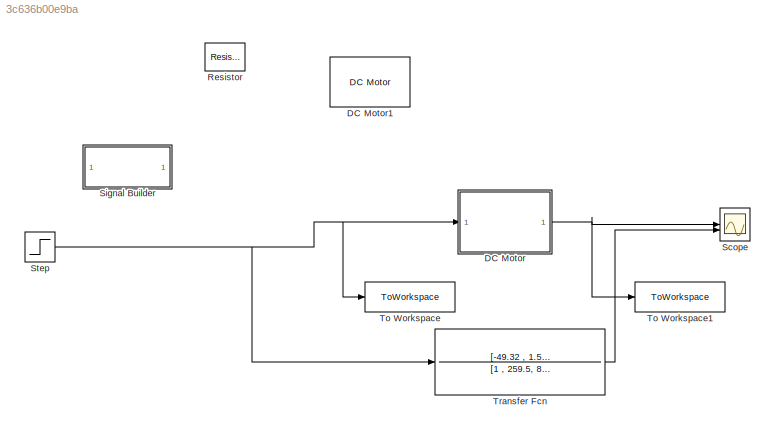
MODEL slx_3c636b00e9ba
KIND model
CONFIG AbsTol = auto
CONFIG EnableMultiTasking = off
CONFIG FixedStep = auto
CONFIG MaxStep = auto
CONFIG MinStep = auto
CONFIG RelTol = 1e-3
CONFIG SampleTimeConstraint = Unconstrained
CONFIG SolverName = VariableStepAuto
CONFIG StartTime = 0.0
CONFIG StopTime = 10.0
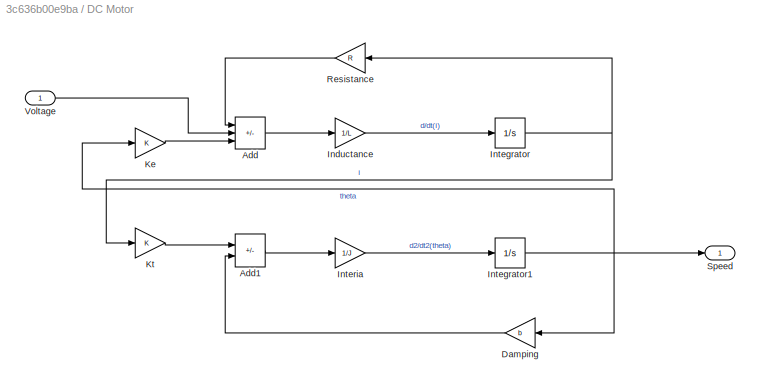
BLOCK [SubSystem] DC Motor
BLOCK [Sum] DC Motor/Add
  IconShape = rectangular
  Inputs = -+-
BLOCK [Sum] DC Motor/Add1
  IconShape = rectangular
  Inputs = +-
BLOCK [Gain] DC Motor/Damping
  Gain = b
BLOCK [Gain] DC Motor/Inductance
  Gain = 1/L
BLOCK [Integrator] DC Motor/Integrator
BLOCK [Integrator] DC Motor/Integrator1
BLOCK [Gain] DC Motor/Interia
  Gain = 1/J
BLOCK [Gain] DC Motor/Ke
  Gain = K
BLOCK [Gain] DC Motor/Kt
  Gain = K
BLOCK [Gain] DC Motor/Resistance
  Gain = R
BLOCK [Outport] DC Motor/Speed
BLOCK [Inport] DC Motor/Voltage
BLOCK [Reference] DC Motor1  REF=ee_lib/Electromechanical/Brushed Motors/DC Motor
  NameLocation = right
  SourceBlock = ee_lib/Electromechanical/Brushed Motors/DC Motor
  SourceType = DC Motor
BLOCK [Reference] Resistor  REF=fl_lib/Electrical/Electrical Elements/Resistor
  SourceBlock = fl_lib/Electrical/Electrical Elements/Resistor
  SourceType = Resistor
BLOCK [Scope] Scope
  Floating = off
  NumInputPorts = 2
  ScopeSpecificationString = Simulink.scopes.TimeScopeBlockCfg('CurrentConfiguration', extmgr.ConfigurationSet(extmgr.Configuration('Core','General UI',true),extmgr.Configuration('Core','Source UI',true),extmgr.Configuration('Sources','WiredSimulink',true),extmgr.Configuration('Visuals','Time Domain',true,'SerializedDisplays',{struct('MinYLimReal','-2.76771','MaxYLimReal','24.90941','YLabelReal','','MinYLimMag','0.00000','Max...<+1400ch>
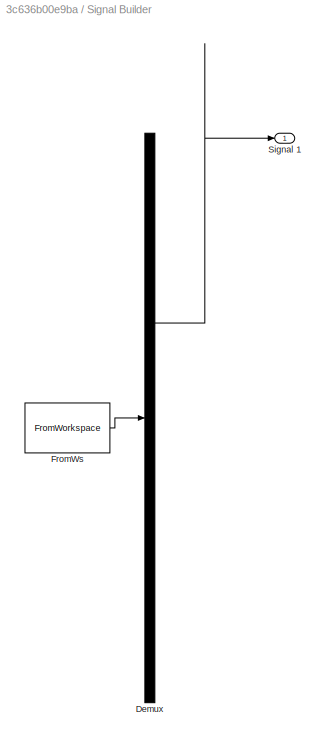
BLOCK [SubSystem] Signal Builder
  ClipboardFcn = sigbuilder_block('clipboard');
  CloseFcn = sigbuilder_block('close');
  ContinueFcn = sigbuilder_block('continue');
  CopyFcn = sigbuilder_block('copy');
  DeleteFcn = sigbuilder_block('delete');
  LoadFcn = sigbuilder_block('load');
  MaskHideContents = on
  ModelCloseFcn = sigbuilder_block('modelClose');
  NameChangeFcn = sigbuilder_block('namechange');
  OpenFcn = sigbuilder_block('open',[437.6 199.2 550.4 400 ]);
  PauseFcn = sigbuilder_block('pause');
  PreSaveFcn = sigbuilder_block('preSave');
  StartFcn = sigbuilder_block('start');
  StopFcn = sigbuilder_block('stop');
  Tag = STV Subsys
BLOCK [Demux] Signal Builder/Demux
  DisplayOption = none
  Outputs = 1
  Tag = STV Demux
BLOCK [FromWorkspace] Signal Builder/FromWs
  Tag = STV FromWs
  VariableName = tuvar
BLOCK [Outport] Signal Builder/Signal 1
  Tag = STV Outport
BLOCK [Step] Step
  After = 12
  SampleTime = 0
BLOCK [ToWorkspace] To Workspace
  FixptAsFi = on
  MaxDataPoints = inf
  SampleTime = -1
  VariableName = stepinput
BLOCK [ToWorkspace] To Workspace1
  FixptAsFi = on
  MaxDataPoints = inf
  SampleTime = -1
  VariableName = Motor_speed
BLOCK [TransferFcn] Transfer Fcn
  Denominator = [1 , 259.5, 8349]
  Numerator = [-49.32 , 1.541e04]
LINE DC Motor/Add1:1 -> DC Motor/Interia:1
LINE DC Motor/Add:1 -> DC Motor/Inductance:1
LINE DC Motor/Damping:1 -> DC Motor/Add1:2
LINE DC Motor/Inductance:1 -> DC Motor/Integrator:1
NET DC Motor/Integrator1:1 -> DC Motor/Damping:1, DC Motor/Ke:1, DC Motor/Speed:1
NET DC Motor/Integrator:1 -> DC Motor/Kt:1, DC Motor/Resistance:1
LINE DC Motor/Interia:1 -> DC Motor/Integrator1:1
LINE DC Motor/Ke:1 -> DC Motor/Add:3
LINE DC Motor/Kt:1 -> DC Motor/Add1:1
LINE DC Motor/Resistance:1 -> DC Motor/Add:1
LINE DC Motor/Voltage:1 -> DC Motor/Add:2
NET DC Motor:1 -> Scope:1, To Workspace1:1
NET Step:1 -> DC Motor:1, To Workspace:1, Transfer Fcn:1
LINE Transfer Fcn:1 -> Scope:2
note: NET lines group one-source signal fan-out (src -> all destinations, sorted); 1:1 wires keep LINE
